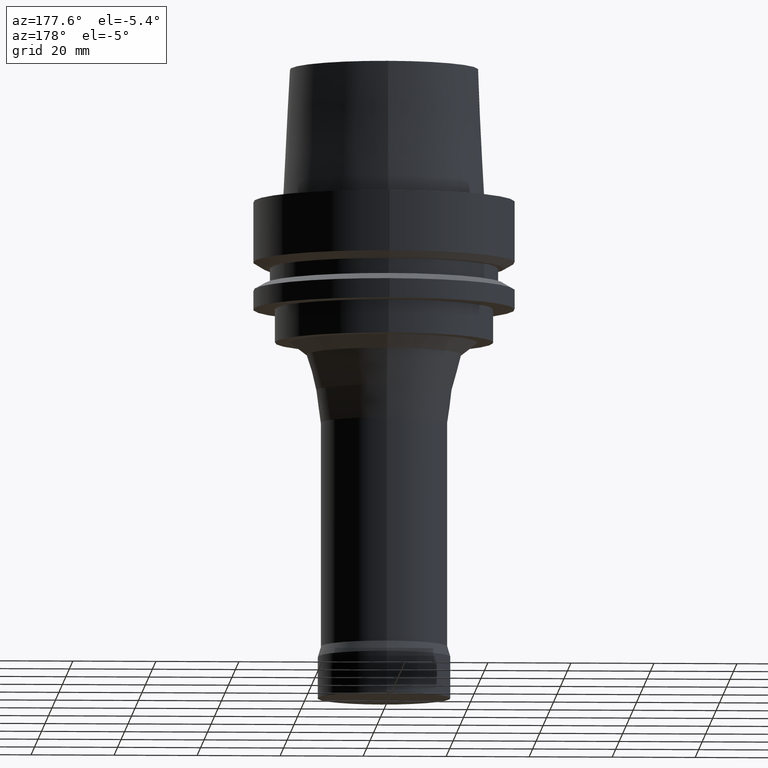
[diagram: clean part render]
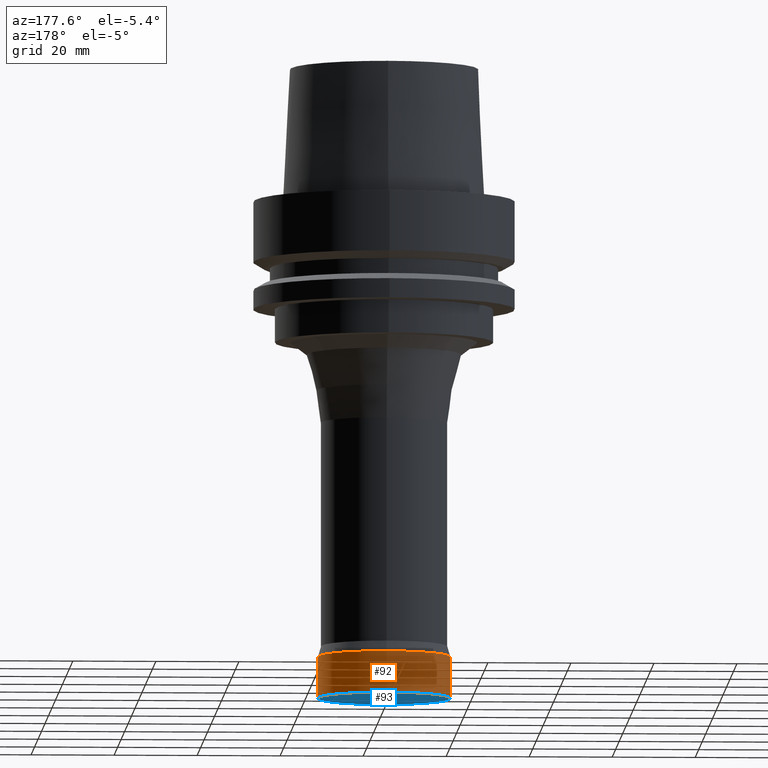
[diagram: same view with the hole feature highlighted: cylindrical wall and planar end face, labeled with their STEP entity ids]
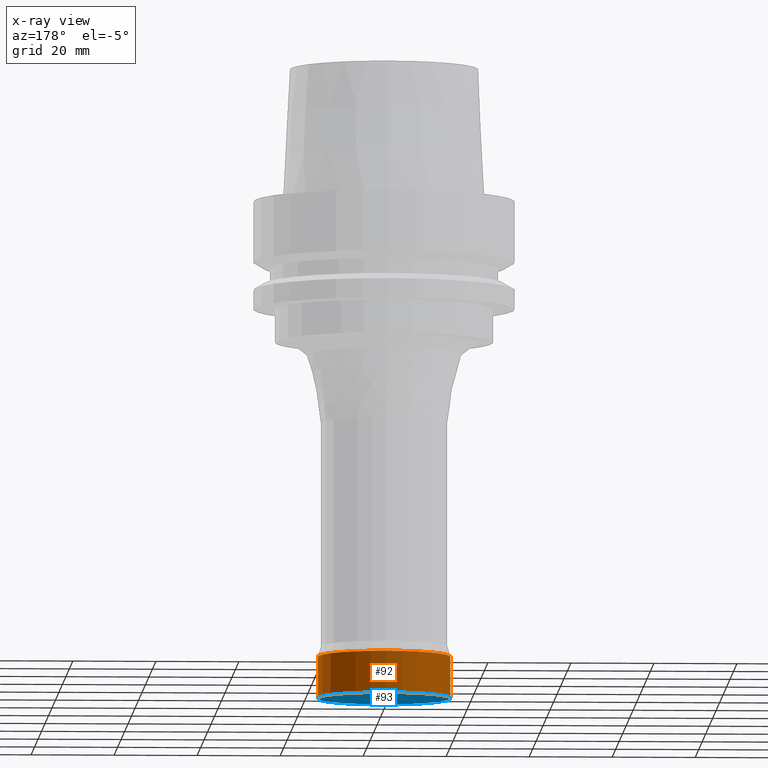
[diagram: x-ray of the same camera — body ghosted, the hole faces saturated]
A machine part, auxiliary view. The highlighted faces form one hole feature of diameter 32 mm: the cylindrical wall (entity #92, orange) and its adjacent planar end face (entity #93, blue) — they share a circular edge in the B-rep.
The next image is the same camera in x-ray (body ghosted, the hole faces saturated) — the bore reads through the body.
Wall:
#92=ADVANCED_FACE('',(#146,#147),#148,.T.);
#146=FACE_BOUND('',#204,.T.);
#147=FACE_BOUND('',#205,.T.);
#148=CYLINDRICAL_SURFACE('',#206,16.0);
#204=EDGE_LOOP('',(#296));
#205=EDGE_LOOP('',(#297));
#206=AXIS2_PLACEMENT_3D('',#298,#299,#300);
#296=ORIENTED_EDGE('',*,*,#328,.F.);
#297=ORIENTED_EDGE('',*,*,#327,.T.);
#298=CARTESIAN_POINT('',(7.04171909509728E-015,1.40834381901946E-014,-115.0));
#299=DIRECTION('',(-6.12323399573677E-017,-1.22464679914735E-016,1.0));
#300=DIRECTION('',(-1.23259516440783E-032,1.0,1.22464679914735E-016));
#327=EDGE_CURVE('',#363,#363,#364,.T.);
#328=EDGE_CURVE('',#365,#365,#366,.T.);
#363=VERTEX_POINT('',#401);
#364=CIRCLE('',#402,16.0);
#365=VERTEX_POINT('',#403);
#366=CIRCLE('',#404,16.0);
#401=CARTESIAN_POINT('',(6.73555739531044E-015,16.0,-110.0));
#402=AXIS2_PLACEMENT_3D('',#456,#457,#458);
#403=CARTESIAN_POINT('',(7.34788079488412E-015,16.0,-120.0));
#404=AXIS2_PLACEMENT_3D('',#459,#460,#461);
#456=CARTESIAN_POINT('',(6.73555739531044E-015,1.34711147906209E-014,-110.0));
#457=DIRECTION('',(6.12323399573677E-017,1.22464679914735E-016,-1.0));
#458=DIRECTION('',(-1.23259516440783E-032,1.0,1.22464679914735E-016));
#459=CARTESIAN_POINT('',(7.34788079488412E-015,1.46957615897682E-014,-120.0));
#460=DIRECTION('',(6.12323399573677E-017,1.22464679914735E-016,-1.0));
#461=DIRECTION('',(-1.23259516440783E-032,1.0,1.22464679914735E-016));
End face:
#93=ADVANCED_FACE('',(#149),#150,.T.);
#149=FACE_OUTER_BOUND('',#207,.T.);
#150=PLANE('',#208);
#207=EDGE_LOOP('',(#301));
#208=AXIS2_PLACEMENT_3D('',#302,#303,#304);
#301=ORIENTED_EDGE('',*,*,#328,.T.);
#302=CARTESIAN_POINT('',(7.34788079488412E-015,8.00000000000001,-120.0));
#303=DIRECTION('',(6.12323399573677E-017,1.22464679914735E-016,-1.0));
#304=DIRECTION('',(-1.23259516440783E-032,1.0,1.22464679914735E-016));
#328=EDGE_CURVE('',#365,#365,#366,.T.);
#365=VERTEX_POINT('',#403);
#366=CIRCLE('',#404,16.0);
#403=CARTESIAN_POINT('',(7.34788079488412E-015,16.0,-120.0));
#404=AXIS2_PLACEMENT_3D('',#459,#460,#461);
#459=CARTESIAN_POINT('',(7.34788079488412E-015,1.46957615897682E-014,-120.0));
#460=DIRECTION('',(6.12323399573677E-017,1.22464679914735E-016,-1.0));
#461=DIRECTION('',(-1.23259516440783E-032,1.0,1.22464679914735E-016));